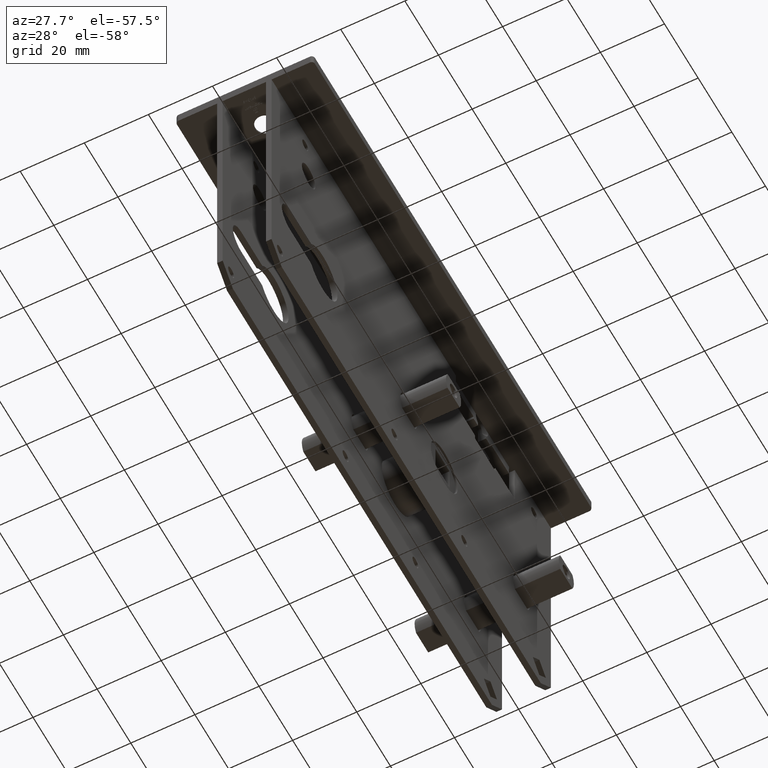
[diagram: clean part render]
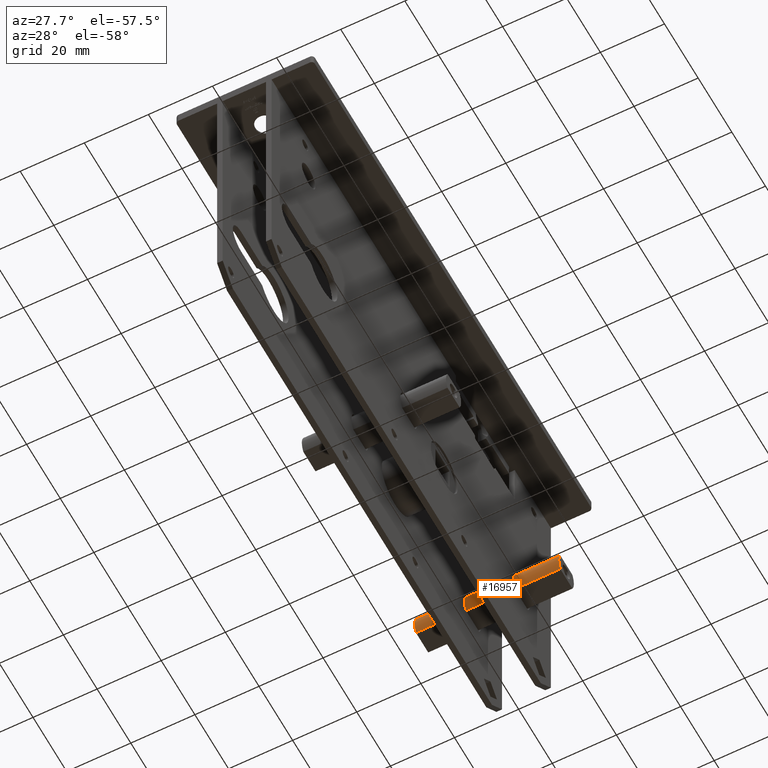
[diagram: same view with one face highlighted and labeled with its STEP entity id]
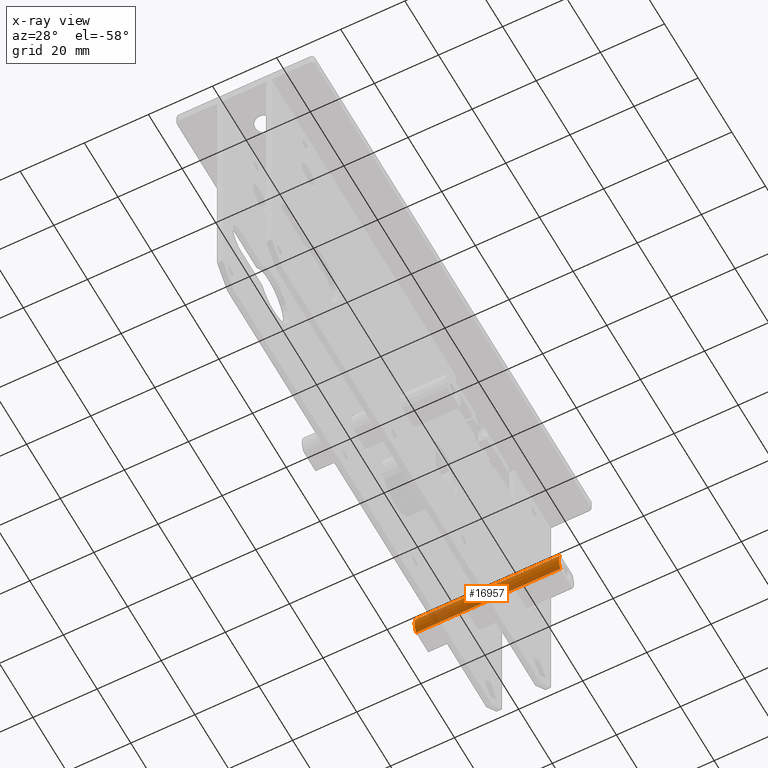
[diagram: x-ray of the same camera — body ghosted, the highlighted face saturated]
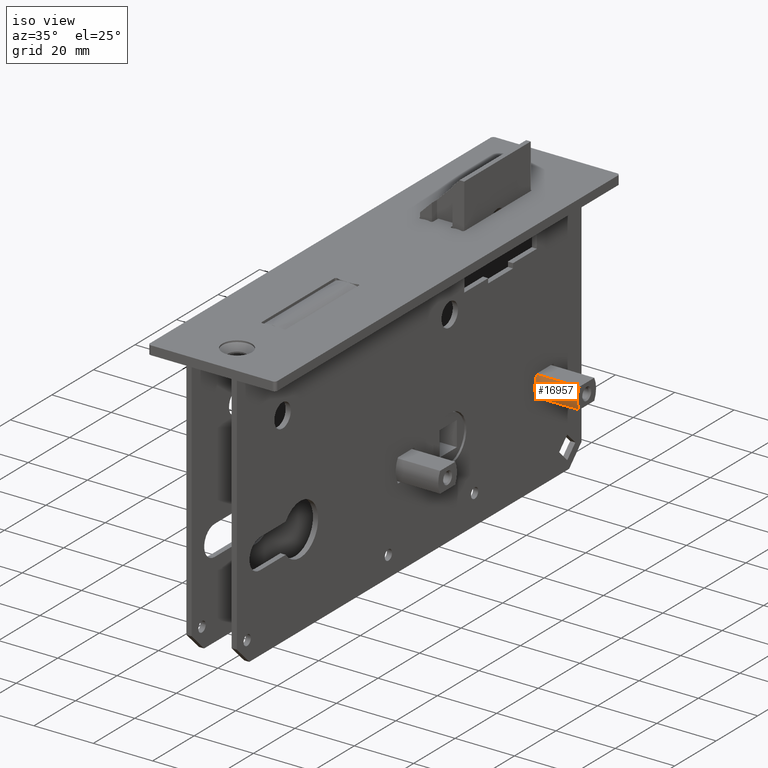
[diagram: same view with one face highlighted and labeled with its STEP entity id]
A machine part, auxiliary view. The second image highlights one B-rep face of the part: STEP entity #16957.
The next image is the same camera in x-ray: the body ghosted, the highlighted face saturated — about 24% of this face is hidden behind the body in this view.
A second angle (iso view) of the same face is appended — the face is thin or edge-on in the first view.
In plain terms, the highlighted cylindrical surface (edge-blend (fillet) strip) has radius 7.5 mm, axis along (1, 0, 0).
Its self-contained STEP definition (entity closure, byte-faithful):
#12 = AXIS2_PLACEMENT_3D ( 'NONE', #1042, #11528, #14831 ) ;
#947 = EDGE_CURVE ( 'NONE', #7606, #13343, #15911, .T. ) ;
#1042 = CARTESIAN_POINT ( 'NONE',  ( -22.49999999999998224, 68.49999999999997158, -58.49999999999999289 ) ) ;
#1333 = DIRECTION ( 'NONE',  ( 1.000000000000000000, 0.000000000000000000, 0.000000000000000000 ) ) ;
#1361 = FACE_OUTER_BOUND ( 'NONE', #12256, .T. ) ;
#1703 = AXIS2_PLACEMENT_3D ( 'NONE', #17867, #1333, #4403 ) ;
#2871 = CARTESIAN_POINT ( 'NONE',  ( -47.90175425099136675, 61.86675041928916841, -54.99999999999999289 ) ) ;
#3249 = EDGE_CURVE ( 'NONE', #4941, #7606, #7972, .T. ) ;
#3363 = LINE ( 'NONE', #15997, #15776 ) ;
#3959 = CARTESIAN_POINT ( 'NONE',  ( 22.49999999999997868, 61.86675041928916841, -54.99999999999999289 ) ) ;
#4379 = VECTOR ( 'NONE', #16592, 1000.000000000000000 ) ;
#4403 = DIRECTION ( 'NONE',  ( 0.000000000000000000, 0.000000000000000000, -1.000000000000000000 ) ) ;
#4941 = VERTEX_POINT ( 'NONE', #19530 ) ;
#5192 = DIRECTION ( 'NONE',  ( 1.000000000000000000, 0.000000000000000000, 0.000000000000000000 ) ) ;
#6389 = CIRCLE ( 'NONE', #12, 7.500000000000007105 ) ;
#7343 = ORIENTED_EDGE ( 'NONE', *, *, #3249, .F. ) ;
#7496 = ORIENTED_EDGE ( 'NONE', *, *, #9628, .F. ) ;
#7606 = VERTEX_POINT ( 'NONE', #3959 ) ;
#7955 = CARTESIAN_POINT ( 'NONE',  ( 22.49999999999997868, 68.49999999999997158, -58.49999999999999289 ) ) ;
#7972 = LINE ( 'NONE', #2871, #4379 ) ;
#8021 = ORIENTED_EDGE ( 'NONE', *, *, #947, .F. ) ;
#8217 = EDGE_CURVE ( 'NONE', #11853, #13343, #3363, .T. ) ;
#9628 = EDGE_CURVE ( 'NONE', #11853, #4941, #6389, .T. ) ;
#10300 = CARTESIAN_POINT ( 'NONE',  ( -22.49999999999998579, 61.86675041928916841, -61.99999999999998579 ) ) ;
#11528 = DIRECTION ( 'NONE',  ( -1.000000000000000000, 3.226642131554168315E-16, -0.000000000000000000 ) ) ;
#11601 = CYLINDRICAL_SURFACE ( 'NONE', #1703, 7.500000000000000000 ) ;
#11853 = VERTEX_POINT ( 'NONE', #10300 ) ;
#12256 = EDGE_LOOP ( 'NONE', ( #7496, #18929, #8021, #7343 ) ) ;
#13343 = VERTEX_POINT ( 'NONE', #14577 ) ;
#14577 = CARTESIAN_POINT ( 'NONE',  ( 22.49999999999997868, 61.86675041928916841, -61.99999999999998579 ) ) ;
#14612 = AXIS2_PLACEMENT_3D ( 'NONE', #7955, #17277, #17084 ) ;
#14831 = DIRECTION ( 'NONE',  ( 4.625929269271480983E-16, 1.000000000000000000, 0.000000000000000000 ) ) ;
#15776 = VECTOR ( 'NONE', #5192, 1000.000000000000000 ) ;
#15911 = CIRCLE ( 'NONE', #14612, 7.500000000000000000 ) ;
#15997 = CARTESIAN_POINT ( 'NONE',  ( -47.90175425099136675, 61.86675041928916841, -61.99999999999998579 ) ) ;
#16592 = DIRECTION ( 'NONE',  ( 1.000000000000000000, 0.000000000000000000, 0.000000000000000000 ) ) ;
#16957 = ADVANCED_FACE ( 'NONE', ( #1361 ), #11601, .T. ) ;
#17084 = DIRECTION ( 'NONE',  ( 0.000000000000000000, 0.000000000000000000, -1.000000000000000000 ) ) ;
#17277 = DIRECTION ( 'NONE',  ( 1.000000000000000000, 0.000000000000000000, 0.000000000000000000 ) ) ;
#17867 = CARTESIAN_POINT ( 'NONE',  ( -47.90175425099136675, 68.49999999999997158, -58.49999999999999289 ) ) ;
#18929 = ORIENTED_EDGE ( 'NONE', *, *, #8217, .T. ) ;
#19530 = CARTESIAN_POINT ( 'NONE',  ( -22.49999999999998579, 61.86675041928916841, -54.99999999999999289 ) ) ;